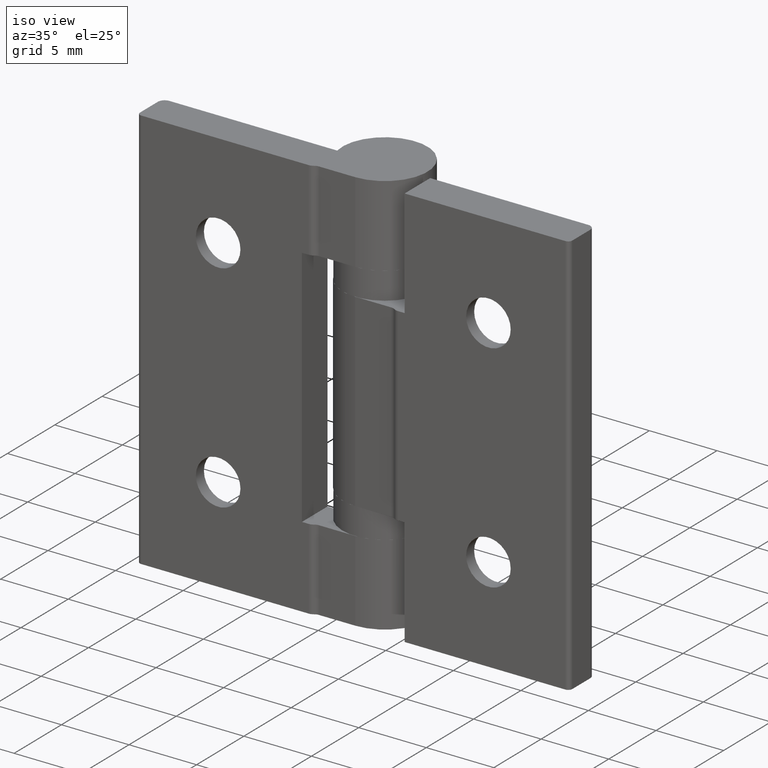
[diagram: clean part render]
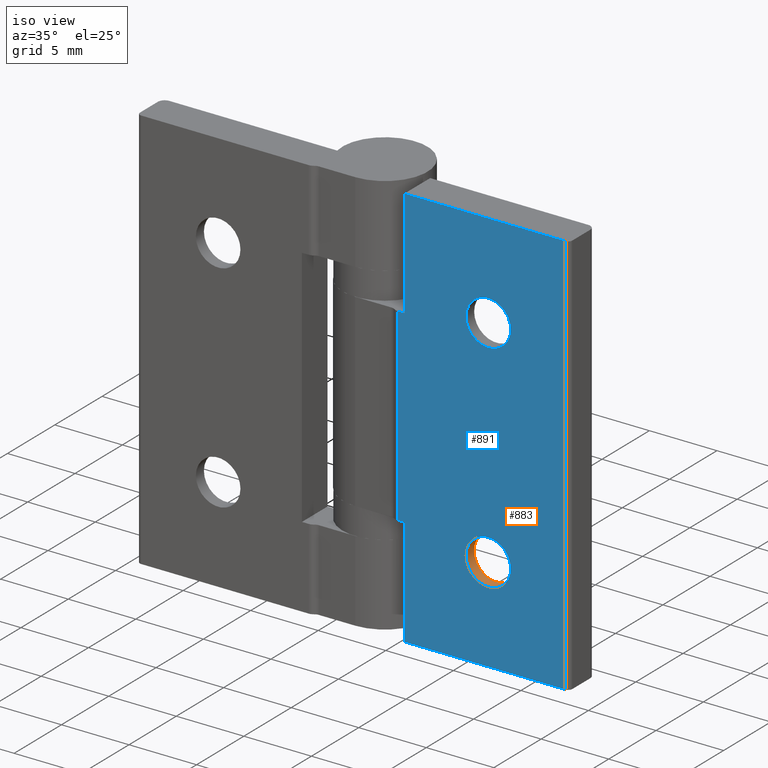
[diagram: same view with the hole feature highlighted: cylindrical wall and planar end face, labeled with their STEP entity ids]
A machine part, iso view. The highlighted faces form one hole feature of diameter 3.3 mm: the cylindrical wall (entity #883, orange) and its adjacent planar end face (entity #891, blue) — they share a circular edge in the B-rep.
Wall:
#74=FACE_BOUND('',#216,.T.);
#141=FACE_OUTER_BOUND('',#215,.T.);
#215=EDGE_LOOP('',(#760));
#216=EDGE_LOOP('',(#761));
#397=CIRCLE('',#979,1.65);
#398=CIRCLE('',#981,1.65);
#474=VERTEX_POINT('',#1485);
#475=VERTEX_POINT('',#1488);
#576=EDGE_CURVE('',#474,#474,#397,.T.);
#577=EDGE_CURVE('',#475,#475,#398,.T.);
#760=ORIENTED_EDGE('',*,*,#577,.F.);
#761=ORIENTED_EDGE('',*,*,#576,.T.);
#841=CYLINDRICAL_SURFACE('',#980,1.65);
#883=ADVANCED_FACE('',(#141,#74),#841,.F.);
#979=AXIS2_PLACEMENT_3D('',#1486,#1214,#1215);
#980=AXIS2_PLACEMENT_3D('',#1487,#1216,#1217);
#981=AXIS2_PLACEMENT_3D('',#1489,#1218,#1219);
#1214=DIRECTION('center_axis',(0.,1.,0.));
#1215=DIRECTION('ref_axis',(1.,0.,0.));
#1216=DIRECTION('center_axis',(0.,1.,0.));
#1217=DIRECTION('ref_axis',(1.,0.,0.));
#1218=DIRECTION('center_axis',(-1.73472347597681E-16,1.,0.));
#1219=DIRECTION('ref_axis',(1.,0.,0.));
#1485=CARTESIAN_POINT('',(11.65,-2.5,-23.));
#1486=CARTESIAN_POINT('Origin',(10.,-2.5,-23.));
#1487=CARTESIAN_POINT('Origin',(10.,-36.829724985135,-23.));
#1488=CARTESIAN_POINT('',(8.35,-3.35,-23.));
#1489=CARTESIAN_POINT('Origin',(10.,-3.35,-23.));
End face:
#77=FACE_BOUND('',#227,.T.);
#78=FACE_BOUND('',#228,.T.);
#101=PLANE('',#997);
#149=FACE_OUTER_BOUND('',#226,.T.);
#226=EDGE_LOOP('',(#798,#799,#800,#801,#802,#803,#804,#805));
#227=EDGE_LOOP('',(#806));
#228=EDGE_LOOP('',(#807));
#270=LINE('',#1443,#331);
#274=LINE('',#1452,#335);
#285=LINE('',#1494,#346);
#287=LINE('',#1505,#348);
#289=LINE('',#1510,#350);
#292=LINE('',#1521,#353);
#296=LINE('',#1530,#357);
#297=LINE('',#1532,#358);
#331=VECTOR('',#1174,30.);
#335=VECTOR('',#1182,11.9);
#346=VECTOR('',#1223,0.517792998515511);
#348=VECTOR('',#1235,8.);
#350=VECTOR('',#1239,8.);
#353=VECTOR('',#1250,0.517792998515511);
#357=VECTOR('',#1262,14.);
#358=VECTOR('',#1265,11.9);
#396=CIRCLE('',#977,1.65);
#398=CIRCLE('',#981,1.65);
#455=VERTEX_POINT('',#1436);
#458=VERTEX_POINT('',#1441);
#461=VERTEX_POINT('',#1451);
#473=VERTEX_POINT('',#1482);
#475=VERTEX_POINT('',#1488);
#476=VERTEX_POINT('',#1491);
#477=VERTEX_POINT('',#1493);
#482=VERTEX_POINT('',#1507);
#483=VERTEX_POINT('',#1509);
#487=VERTEX_POINT('',#1519);
#556=EDGE_CURVE('',#458,#455,#270,.T.);
#560=EDGE_CURVE('',#455,#461,#274,.T.);
#575=EDGE_CURVE('',#473,#473,#396,.T.);
#577=EDGE_CURVE('',#475,#475,#398,.T.);
#579=EDGE_CURVE('',#477,#476,#285,.T.);
#585=EDGE_CURVE('',#476,#461,#287,.T.);
#587=EDGE_CURVE('',#483,#482,#289,.T.);
#593=EDGE_CURVE('',#482,#487,#292,.T.);
#598=EDGE_CURVE('',#477,#487,#296,.T.);
#599=EDGE_CURVE('',#458,#483,#297,.T.);
#798=ORIENTED_EDGE('',*,*,#556,.F.);
#799=ORIENTED_EDGE('',*,*,#599,.T.);
#800=ORIENTED_EDGE('',*,*,#587,.T.);
#801=ORIENTED_EDGE('',*,*,#593,.T.);
#802=ORIENTED_EDGE('',*,*,#598,.F.);
#803=ORIENTED_EDGE('',*,*,#579,.T.);
#804=ORIENTED_EDGE('',*,*,#585,.T.);
#805=ORIENTED_EDGE('',*,*,#560,.F.);
#806=ORIENTED_EDGE('',*,*,#575,.T.);
#807=ORIENTED_EDGE('',*,*,#577,.T.);
#891=ADVANCED_FACE('',(#149,#77,#78),#101,.T.);
#977=AXIS2_PLACEMENT_3D('',#1483,#1210,#1211);
#981=AXIS2_PLACEMENT_3D('',#1489,#1218,#1219);
#997=AXIS2_PLACEMENT_3D('',#1531,#1263,#1264);
#1174=DIRECTION('',(0.,0.,-1.));
#1182=DIRECTION('',(-1.,-1.73472347597681E-16,0.));
#1210=DIRECTION('center_axis',(-1.73472347597681E-16,1.,0.));
#1211=DIRECTION('ref_axis',(1.,0.,0.));
#1218=DIRECTION('center_axis',(-1.73472347597681E-16,1.,0.));
#1219=DIRECTION('ref_axis',(1.,0.,0.));
#1223=DIRECTION('',(1.,1.73472347597681E-16,0.));
#1235=DIRECTION('',(-1.04083408558608E-16,-1.80555932286303E-32,-1.));
#1239=DIRECTION('',(-1.73472347597681E-16,-3.00926553810506E-32,-1.));
#1250=DIRECTION('',(-1.,-1.73472347597681E-16,1.34847054058434E-16));
#1262=DIRECTION('',(0.,0.,1.));
#1263=DIRECTION('center_axis',(1.73472347597681E-16,-1.,0.));
#1264=DIRECTION('ref_axis',(-1.,-1.77635683940025E-16,0.));
#1265=DIRECTION('',(-1.,-1.73472347597681E-16,0.));
#1436=CARTESIAN_POINT('',(15.7,-3.35,-30.));
#1441=CARTESIAN_POINT('',(15.7,-3.35,0.));
#1443=CARTESIAN_POINT('',(15.7,-3.35,0.));
#1451=CARTESIAN_POINT('',(3.8,-3.35,-30.));
#1452=CARTESIAN_POINT('',(16.,-3.35,-30.));
#1482=CARTESIAN_POINT('',(8.35,-3.35,-7.));
#1483=CARTESIAN_POINT('Origin',(10.,-3.35,-7.));
#1488=CARTESIAN_POINT('',(8.35,-3.35,-23.));
#1489=CARTESIAN_POINT('Origin',(10.,-3.35,-23.));
#1491=CARTESIAN_POINT('',(3.8,-3.35,-22.));
#1493=CARTESIAN_POINT('',(3.28220700148449,-3.35,-22.));
#1494=CARTESIAN_POINT('',(5.2764002551698,-3.35,-22.));
#1505=CARTESIAN_POINT('',(3.8,-3.35,-11.));
#1507=CARTESIAN_POINT('',(3.8,-3.35,-8.));
#1509=CARTESIAN_POINT('',(3.8,-3.35,0.));
#1510=CARTESIAN_POINT('',(3.8,-3.35,1.05818132034585E-15));
#1519=CARTESIAN_POINT('',(3.28220700148449,-3.35,-8.));
#1521=CARTESIAN_POINT('',(9.9,-3.35,-8.));
#1530=CARTESIAN_POINT('',(3.28220700148449,-3.35,0.));
#1531=CARTESIAN_POINT('Origin',(16.,-3.35,0.));
#1532=CARTESIAN_POINT('',(16.,-3.35,0.));